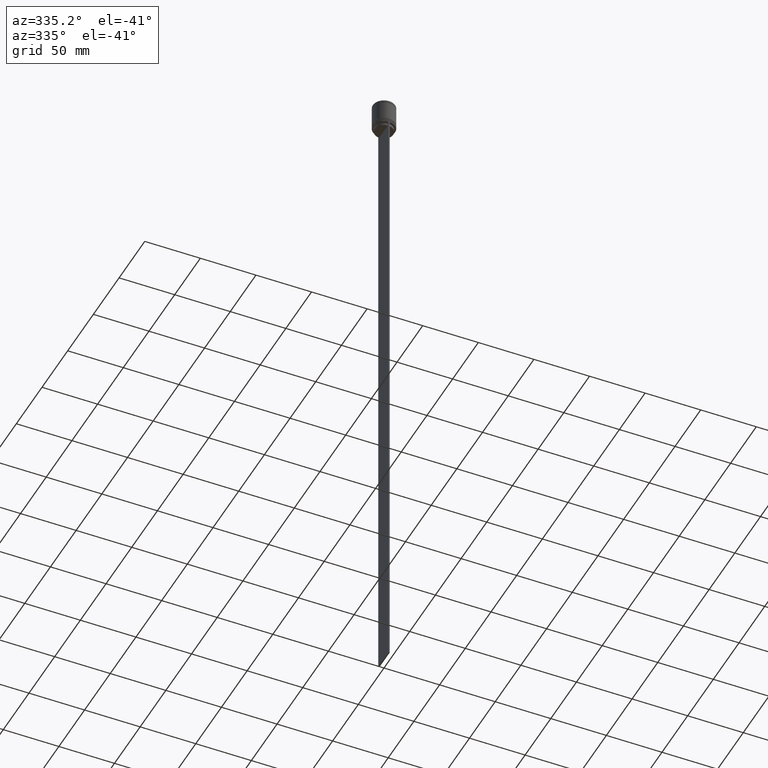
[diagram: clean part render]
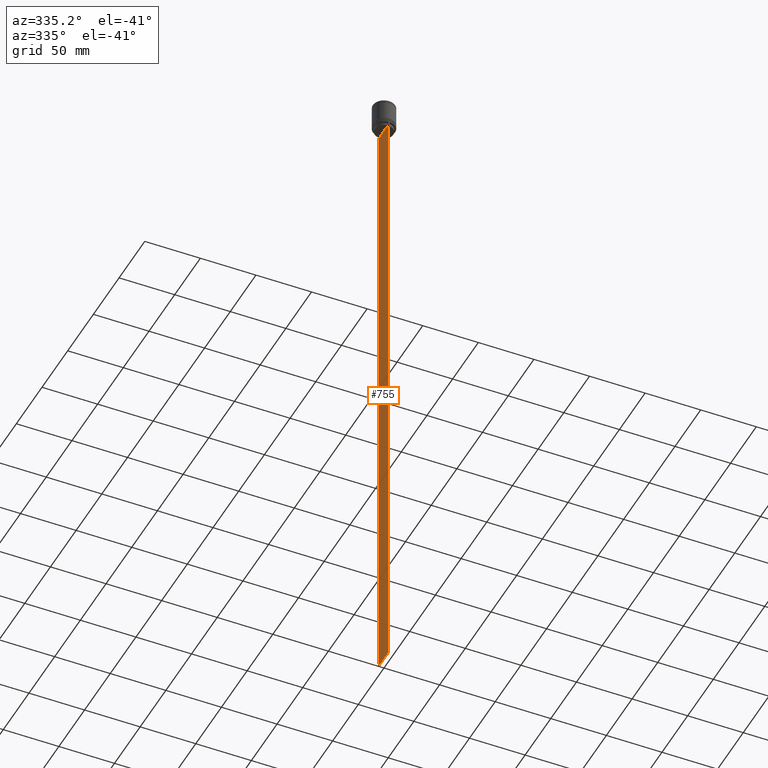
[diagram: same view with one face highlighted and labeled with its STEP entity id]
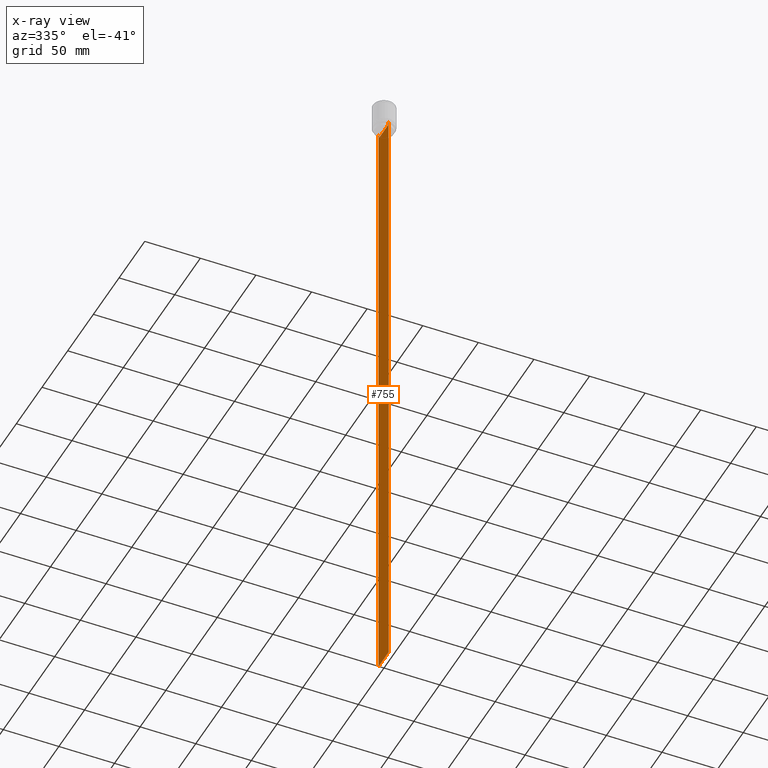
[diagram: x-ray of the same camera — body ghosted, the highlighted face saturated]
A machine part, auxiliary view. The second image highlights one B-rep face of the part: STEP entity #755.
The next image is the same camera in x-ray: the body ghosted, the highlighted face saturated — about 0% of this face is hidden behind the body in this view.
In plain terms, the highlighted planar face has unit normal (-1, 0, 0).
Its self-contained STEP definition (entity closure, byte-faithful):
#5 = ORIENTED_EDGE ( 'NONE', *, *, #725, .F. ) ;
#7 = CARTESIAN_POINT ( 'NONE',  ( -0.5000000000000000000, 8.385105843100610912, -25.50000000000000000 ) ) ;
#43 = CARTESIAN_POINT ( 'NONE',  ( -0.5000000000000000000, -10.00000000000000178, -596.4999999999998863 ) ) ;
#67 = DIRECTION ( 'NONE',  ( 0.000000000000000000, 0.000000000000000000, -1.000000000000000000 ) ) ;
#85 = ORIENTED_EDGE ( 'NONE', *, *, #673, .F. ) ;
#96 = LINE ( 'NONE', #729, #228 ) ;
#102 = CARTESIAN_POINT ( 'NONE',  ( -0.5000000000000000000, 8.719005771582342135, -22.66667453442325098 ) ) ;
#119 = LINE ( 'NONE', #745, #2048 ) ;
#131 = VECTOR ( 'NONE', #918, 1000.000000000000000 ) ;
#137 = EDGE_LOOP ( 'NONE', ( #1720, #5, #1519, #384, #363, #852, #1218, #841, #85, #1288, #788, #899 ) ) ;
#158 = CARTESIAN_POINT ( 'NONE',  ( -0.5000000000000000000, -8.552060194457768105, -22.83334167772666845 ) ) ;
#180 = DIRECTION ( 'NONE',  ( 0.000000000000000000, -1.000000000000000000, 0.000000000000000000 ) ) ;
#193 = CARTESIAN_POINT ( 'NONE',  ( -0.5000000000000000000, -9.887365675446622149, -22.50000000000000000 ) ) ;
#195 = CARTESIAN_POINT ( 'NONE',  ( -0.5000000000000000000, -10.00000000000000178, -2.475015605499213844 ) ) ;
#219 = VERTEX_POINT ( 'NONE', #193 ) ;
#228 = VECTOR ( 'NONE', #1374, 1000.000000000000000 ) ;
#230 = CARTESIAN_POINT ( 'NONE',  ( -0.5000000000000000000, 8.885943956609226646, -22.50000000000000000 ) ) ;
#245 = DIRECTION ( 'NONE',  ( 0.000000000000000000, -1.000000000000000000, 0.000000000000000000 ) ) ;
#300 = EDGE_CURVE ( 'NONE', #2035, #1732, #1997, .T. ) ;
#331 = CARTESIAN_POINT ( 'NONE',  ( -0.5000000000000000000, 9.887365675446622149, -22.50000000000000000 ) ) ;
#361 = DIRECTION ( 'NONE',  ( 0.000000000000000000, 0.000000000000000000, 1.000000000000000000 ) ) ;
#363 = ORIENTED_EDGE ( 'NONE', *, *, #914, .F. ) ;
#383 = CARTESIAN_POINT ( 'NONE',  ( -0.5000000000000000000, 8.385105843100610912, 0.000000000000000000 ) ) ;
#384 = ORIENTED_EDGE ( 'NONE', *, *, #990, .T. ) ;
#397 = LINE ( 'NONE', #721, #1704 ) ;
#488 = CARTESIAN_POINT ( 'NONE',  ( -0.5000000000000000000, 9.999999999999998224, -596.4999999999998863 ) ) ;
#499 = LINE ( 'NONE', #1783, #1373 ) ;
#512 = CARTESIAN_POINT ( 'NONE',  ( -0.5000000000000000000, -10.00000000000000178, -2.475015605499213844 ) ) ;
#515 = VERTEX_POINT ( 'NONE', #541 ) ;
#541 = CARTESIAN_POINT ( 'NONE',  ( -0.5000000000000000000, -10.00000000000000178, -596.4999999999998863 ) ) ;
#545 = VERTEX_POINT ( 'NONE', #1476 ) ;
#621 = EDGE_CURVE ( 'NONE', #219, #1375, #96, .T. ) ;
#665 = LINE ( 'NONE', #1650, #2007 ) ;
#673 = EDGE_CURVE ( 'NONE', #1325, #1762, #1724, .T. ) ;
#676 = FACE_OUTER_BOUND ( 'NONE', #137, .T. ) ;
#686 = EDGE_CURVE ( 'NONE', #1952, #545, #1126, .T. ) ;
#711 = CARTESIAN_POINT ( 'NONE',  ( -0.5000000000000000000, 9.999999999999994671, -22.50000000000000000 ) ) ;
#721 = CARTESIAN_POINT ( 'NONE',  ( -0.5000000000000000000, -10.00000000000000178, -22.50000000000000000 ) ) ;
#725 = EDGE_CURVE ( 'NONE', #753, #2035, #665, .T. ) ;
#728 = EDGE_CURVE ( 'NONE', #545, #1325, #849, .T. ) ;
#729 = CARTESIAN_POINT ( 'NONE',  ( -0.5000000000000000000, -10.00000000000000178, -22.50000000000000000 ) ) ;
#733 = CARTESIAN_POINT ( 'NONE',  ( -0.5000000000000000000, 8.552060201981374732, -22.83334167021640582 ) ) ;
#745 = CARTESIAN_POINT ( 'NONE',  ( -0.5000000000000000000, -10.00000000000000178, -22.50000000000000000 ) ) ;
#753 = VERTEX_POINT ( 'NONE', #331 ) ;
#755 = ADVANCED_FACE ( 'NONE', ( #676 ), #983, .T. ) ;
#760 = DIRECTION ( 'NONE',  ( 0.000000000000000000, -1.000000000000000000, 0.000000000000000000 ) ) ;
#762 = CARTESIAN_POINT ( 'NONE',  ( -0.5000000000000000000, 8.885943956609226646, -22.50000000000000000 ) ) ;
#785 = DIRECTION ( 'NONE',  ( 0.000000000000000000, 0.000000000000000000, -1.000000000000000000 ) ) ;
#788 = ORIENTED_EDGE ( 'NONE', *, *, #686, .F. ) ;
#794 = CARTESIAN_POINT ( 'NONE',  ( -0.5000000000000000000, -8.719005764482783860, -22.66667454151159689 ) ) ;
#818 = DIRECTION ( 'NONE',  ( -0.000000000000000000, -0.000000000000000000, 1.000000000000000000 ) ) ;
#825 = EDGE_CURVE ( 'NONE', #1732, #1952, #1674, .T. ) ;
#833 = DIRECTION ( 'NONE',  ( 0.000000000000000000, 0.000000000000000000, -1.000000000000000000 ) ) ;
#841 = ORIENTED_EDGE ( 'NONE', *, *, #885, .F. ) ;
#849 = LINE ( 'NONE', #1330, #1645 ) ;
#852 = ORIENTED_EDGE ( 'NONE', *, *, #1958, .F. ) ;
#874 = LINE ( 'NONE', #43, #1972 ) ;
#885 = EDGE_CURVE ( 'NONE', #1762, #219, #397, .T. ) ;
#899 = ORIENTED_EDGE ( 'NONE', *, *, #825, .F. ) ;
#914 = EDGE_CURVE ( 'NONE', #515, #1961, #874, .T. ) ;
#918 = DIRECTION ( 'NONE',  ( 0.000000000000000000, -1.000000000000000000, 0.000000000000000000 ) ) ;
#983 = PLANE ( 'NONE',  #1007 ) ;
#990 = EDGE_CURVE ( 'NONE', #1659, #1961, #499, .T. ) ;
#1007 = AXIS2_PLACEMENT_3D ( 'NONE', #512, #1488, #361 ) ;
#1064 = CARTESIAN_POINT ( 'NONE',  ( -0.5000000000000000000, 8.385105843100610912, -23.00000000000000000 ) ) ;
#1126 = LINE ( 'NONE', #1760, #131 ) ;
#1218 = ORIENTED_EDGE ( 'NONE', *, *, #621, .F. ) ;
#1229 = CARTESIAN_POINT ( 'NONE',  ( -0.5000000000000000000, -8.885943956609226646, -22.50000000000000000 ) ) ;
#1288 = ORIENTED_EDGE ( 'NONE', *, *, #728, .F. ) ;
#1308 = LINE ( 'NONE', #195, #1585 ) ;
#1325 = VERTEX_POINT ( 'NONE', #2059 ) ;
#1330 = CARTESIAN_POINT ( 'NONE',  ( -0.5000000000000000000, -8.385105843100610912, 0.000000000000000000 ) ) ;
#1358 = DIRECTION ( 'NONE',  ( 0.000000000000000000, 1.000000000000000000, 0.000000000000000000 ) ) ;
#1373 = VECTOR ( 'NONE', #785, 1000.000000000000000 ) ;
#1374 = DIRECTION ( 'NONE',  ( 0.000000000000000000, -1.000000000000000000, 0.000000000000000000 ) ) ;
#1375 = VERTEX_POINT ( 'NONE', #1828 ) ;
#1414 = EDGE_CURVE ( 'NONE', #1659, #753, #119, .T. ) ;
#1443 = CARTESIAN_POINT ( 'NONE',  ( -0.5000000000000000000, -8.885943956609226646, -22.50000000000000000 ) ) ;
#1476 = CARTESIAN_POINT ( 'NONE',  ( -0.5000000000000000000, -8.385105843100610912, -25.50000000000000000 ) ) ;
#1488 = DIRECTION ( 'NONE',  ( -1.000000000000000000, 0.000000000000000000, 0.000000000000000000 ) ) ;
#1519 = ORIENTED_EDGE ( 'NONE', *, *, #1414, .F. ) ;
#1585 = VECTOR ( 'NONE', #833, 1000.000000000000000 ) ;
#1599 = CARTESIAN_POINT ( 'NONE',  ( -0.5000000000000000000, -8.385105843100610912, -23.00000000000000000 ) ) ;
#1645 = VECTOR ( 'NONE', #818, 1000.000000000000000 ) ;
#1650 = CARTESIAN_POINT ( 'NONE',  ( -0.5000000000000000000, -10.00000000000000178, -22.50000000000000000 ) ) ;
#1659 = VERTEX_POINT ( 'NONE', #711 ) ;
#1674 = LINE ( 'NONE', #383, #1777 ) ;
#1704 = VECTOR ( 'NONE', #245, 1000.000000000000000 ) ;
#1720 = ORIENTED_EDGE ( 'NONE', *, *, #300, .F. ) ;
#1724 = B_SPLINE_CURVE_WITH_KNOTS ( 'NONE', 3,
 ( #1599, #158, #794, #1443 ),
 .UNSPECIFIED., .F., .F.,
 ( 4, 4 ),
 ( 0.03898465126933125385, 0.03969388910599652709 ),
 .UNSPECIFIED. ) ;
#1732 = VERTEX_POINT ( 'NONE', #2020 ) ;
#1760 = CARTESIAN_POINT ( 'NONE',  ( -0.5000000000000000000, 8.400000000000000355, -25.50000000000000000 ) ) ;
#1762 = VERTEX_POINT ( 'NONE', #1229 ) ;
#1777 = VECTOR ( 'NONE', #67, 1000.000000000000000 ) ;
#1783 = CARTESIAN_POINT ( 'NONE',  ( -0.5000000000000000000, 9.999999999999998224, -2.475015605499213844 ) ) ;
#1828 = CARTESIAN_POINT ( 'NONE',  ( -0.5000000000000000000, -10.00000000000000178, -22.50000000000000000 ) ) ;
#1952 = VERTEX_POINT ( 'NONE', #7 ) ;
#1958 = EDGE_CURVE ( 'NONE', #1375, #515, #1308, .T. ) ;
#1961 = VERTEX_POINT ( 'NONE', #488 ) ;
#1972 = VECTOR ( 'NONE', #1358, 1000.000000000000000 ) ;
#1997 = B_SPLINE_CURVE_WITH_KNOTS ( 'NONE', 3,
 ( #762, #102, #733, #1064 ),
 .UNSPECIFIED., .F., .F.,
 ( 4, 4 ),
 ( 0.01511546479386905242, 0.01582316445439076874 ),
 .UNSPECIFIED. ) ;
#2007 = VECTOR ( 'NONE', #180, 1000.000000000000000 ) ;
#2020 = CARTESIAN_POINT ( 'NONE',  ( -0.5000000000000000000, 8.385105843100610912, -23.00000000000000000 ) ) ;
#2035 = VERTEX_POINT ( 'NONE', #230 ) ;
#2048 = VECTOR ( 'NONE', #760, 1000.000000000000000 ) ;
#2059 = CARTESIAN_POINT ( 'NONE',  ( -0.5000000000000000000, -8.385105843100610912, -23.00000000000000000 ) ) ;